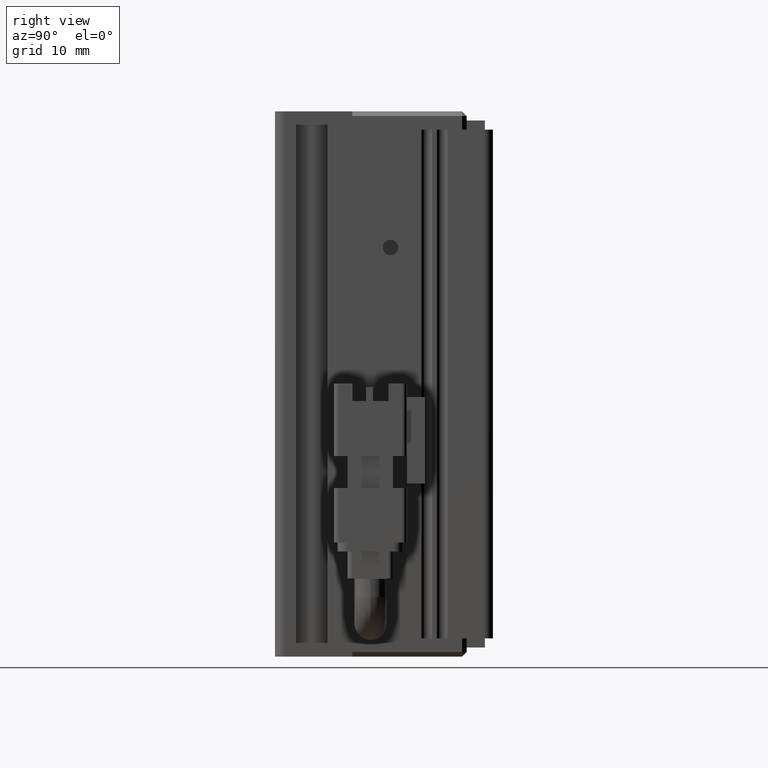
[diagram: clean part render]
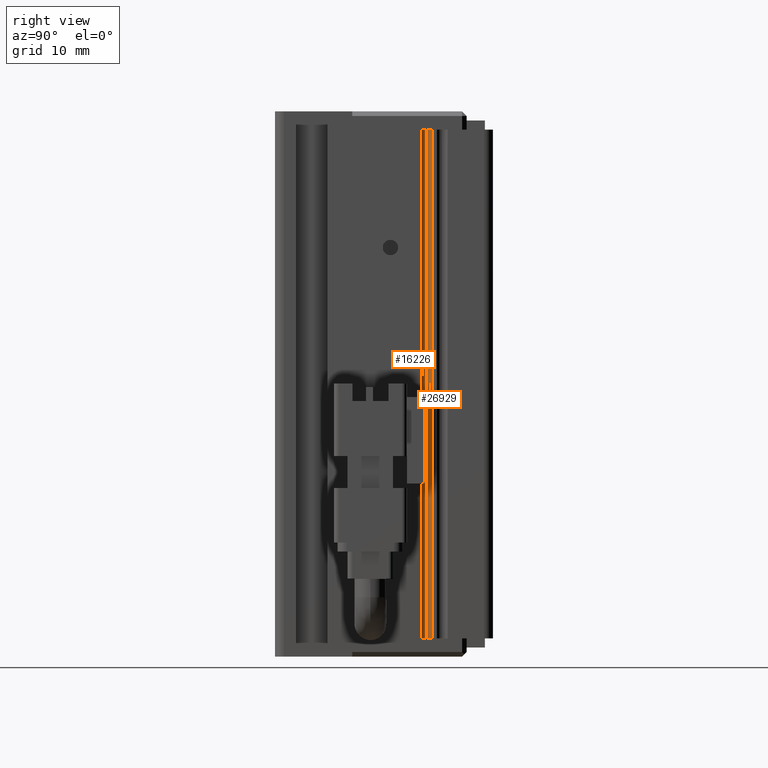
[diagram: same view with one multi-face feature highlighted, each face labeled with its STEP entity id]
A machine part, right view. The highlighted faces form ONE feature: a constant-radius fillet chain: 2 tangent blend faces with common blend radius 0.6 mm. The faces share edges in the B-rep.
Their STEP definitions:
[1] entity #26929 (Cylinder):
#212 = CIRCLE ( 'NONE', #4909, 0.6000000000000033100 ) ;
#806 = CARTESIAN_POINT ( 'NONE',  ( 40.32537974683542400, 23.78379746835443600, -87.00000000000001400 ) ) ;
#1475 = CARTESIAN_POINT ( 'NONE',  ( 40.92537974683542500, 24.38379746835444100, -143.0000000000000300 ) ) ;
#1970 = VERTEX_POINT ( 'NONE', #1475 ) ;
#2649 = DIRECTION ( 'NONE',  ( 0.0000000000000000000, 0.0000000000000000000, 1.000000000000000000 ) ) ;
#3561 = CARTESIAN_POINT ( 'NONE',  ( 40.92537974683542500, 23.78379746835443600, -87.00000000000001400 ) ) ;
#3815 = CYLINDRICAL_SURFACE ( 'NONE', #7366, 0.6000000000000033100 ) ;
#4127 = VERTEX_POINT ( 'NONE', #20525 ) ;
#4422 = DIRECTION ( 'NONE',  ( -0.0000000000000000000, -0.0000000000000000000, -1.000000000000000000 ) ) ;
#4909 = AXIS2_PLACEMENT_3D ( 'NONE', #3561, #16688, #27886 ) ;
#5116 = CARTESIAN_POINT ( 'NONE',  ( 40.92537974683542500, 23.78379746835443600, -143.0000000000000300 ) ) ;
#5387 = LINE ( 'NONE', #18865, #9861 ) ;
#7366 = AXIS2_PLACEMENT_3D ( 'NONE', #26797, #11494, #22144 ) ;
#7598 = FACE_OUTER_BOUND ( 'NONE', #14120, .T. ) ;
#8134 = AXIS2_PLACEMENT_3D ( 'NONE', #5116, #2649, #18157 ) ;
#9861 = VECTOR ( 'NONE', #21164, 1000.000000000000000 ) ;
#10653 = EDGE_CURVE ( 'NONE', #4127, #1970, #24738, .T. ) ;
#11494 = DIRECTION ( 'NONE',  ( -0.0000000000000000000, -0.0000000000000000000, -1.000000000000000000 ) ) ;
#11981 = ORIENTED_EDGE ( 'NONE', *, *, #21644, .T. ) ;
#14120 = EDGE_LOOP ( 'NONE', ( #11981, #17918, #23661, #25614 ) ) ;
#14931 = VERTEX_POINT ( 'NONE', #27929 ) ;
#16688 = DIRECTION ( 'NONE',  ( 0.0000000000000000000, 0.0000000000000000000, 1.000000000000000000 ) ) ;
#17690 = CIRCLE ( 'NONE', #8134, 0.6000000000000033100 ) ;
#17918 = ORIENTED_EDGE ( 'NONE', *, *, #28273, .T. ) ;
#18157 = DIRECTION ( 'NONE',  ( -1.000000000000000000, 0.0000000000000000000, 0.0000000000000000000 ) ) ;
#18204 = VECTOR ( 'NONE', #4422, 1000.000000000000000 ) ;
#18865 = CARTESIAN_POINT ( 'NONE',  ( 40.32537974683542400, 23.78379746835443600, -85.00000000000000000 ) ) ;
#20525 = CARTESIAN_POINT ( 'NONE',  ( 40.92537974683542500, 24.38379746835444100, -87.00000000000001400 ) ) ;
#21164 = DIRECTION ( 'NONE',  ( -0.0000000000000000000, -0.0000000000000000000, -1.000000000000000000 ) ) ;
#21604 = CARTESIAN_POINT ( 'NONE',  ( 40.92537974683542500, 24.38379746835444100, -85.00000000000000000 ) ) ;
#21644 = EDGE_CURVE ( 'NONE', #4127, #28213, #212, .T. ) ;
#22144 = DIRECTION ( 'NONE',  ( -1.000000000000000000, 0.0000000000000000000, 0.0000000000000000000 ) ) ;
#23661 = ORIENTED_EDGE ( 'NONE', *, *, #23812, .F. ) ;
#23812 = EDGE_CURVE ( 'NONE', #1970, #14931, #17690, .T. ) ;
#24738 = LINE ( 'NONE', #21604, #18204 ) ;
#25614 = ORIENTED_EDGE ( 'NONE', *, *, #10653, .F. ) ;
#26797 = CARTESIAN_POINT ( 'NONE',  ( 40.92537974683542500, 23.78379746835443600, -85.00000000000000000 ) ) ;
#26929 = ADVANCED_FACE ( 'NONE', ( #7598 ), #3815, .F. ) ;
#27886 = DIRECTION ( 'NONE',  ( -1.000000000000000000, 0.0000000000000000000, 0.0000000000000000000 ) ) ;
#27929 = CARTESIAN_POINT ( 'NONE',  ( 40.32537974683542400, 23.78379746835443600, -143.0000000000000300 ) ) ;
#28213 = VERTEX_POINT ( 'NONE', #806 ) ;
#28273 = EDGE_CURVE ( 'NONE', #28213, #14931, #5387, .T. ) ;
[2] entity #16226 (Cylinder):
#633 = CYLINDRICAL_SURFACE ( 'NONE', #5956, 0.6000000000000033100 ) ;
#806 = CARTESIAN_POINT ( 'NONE',  ( 40.32537974683542400, 23.78379746835443600, -87.00000000000001400 ) ) ;
#2729 = EDGE_CURVE ( 'NONE', #14704, #15790, #26451, .T. ) ;
#3420 = CARTESIAN_POINT ( 'NONE',  ( 40.92537974683542500, 23.18379746835443800, -87.00000000000001400 ) ) ;
#4449 = AXIS2_PLACEMENT_3D ( 'NONE', #16332, #27519, #16233 ) ;
#4991 = CIRCLE ( 'NONE', #4449, 0.6000000000000033100 ) ;
#5290 = CARTESIAN_POINT ( 'NONE',  ( 40.92537974683542500, 23.78379746835443600, -85.00000000000000000 ) ) ;
#5387 = LINE ( 'NONE', #18865, #9861 ) ;
#5956 = AXIS2_PLACEMENT_3D ( 'NONE', #5290, #9735, #27806 ) ;
#7517 = DIRECTION ( 'NONE',  ( -1.000000000000000000, 0.0000000000000000000, 0.0000000000000000000 ) ) ;
#8588 = VECTOR ( 'NONE', #12278, 1000.000000000000000 ) ;
#8733 = ORIENTED_EDGE ( 'NONE', *, *, #2729, .T. ) ;
#9735 = DIRECTION ( 'NONE',  ( -0.0000000000000000000, -0.0000000000000000000, -1.000000000000000000 ) ) ;
#9861 = VECTOR ( 'NONE', #21164, 1000.000000000000000 ) ;
#10086 = CARTESIAN_POINT ( 'NONE',  ( 40.92537974683542500, 23.18379746835444200, -85.00000000000000000 ) ) ;
#10361 = EDGE_CURVE ( 'NONE', #14931, #15790, #13459, .T. ) ;
#11200 = EDGE_LOOP ( 'NONE', ( #16079, #16418, #8733, #18672 ) ) ;
#11910 = CARTESIAN_POINT ( 'NONE',  ( 40.92537974683542500, 23.78379746835443600, -143.0000000000000300 ) ) ;
#12278 = DIRECTION ( 'NONE',  ( -0.0000000000000000000, -0.0000000000000000000, -1.000000000000000000 ) ) ;
#13459 = CIRCLE ( 'NONE', #27427, 0.6000000000000033100 ) ;
#14704 = VERTEX_POINT ( 'NONE', #3420 ) ;
#14931 = VERTEX_POINT ( 'NONE', #27929 ) ;
#15790 = VERTEX_POINT ( 'NONE', #16164 ) ;
#16079 = ORIENTED_EDGE ( 'NONE', *, *, #28273, .F. ) ;
#16164 = CARTESIAN_POINT ( 'NONE',  ( 40.92537974683542500, 23.18379746835443800, -143.0000000000000300 ) ) ;
#16226 = ADVANCED_FACE ( 'NONE', ( #19565 ), #633, .F. ) ;
#16233 = DIRECTION ( 'NONE',  ( -1.000000000000000000, 0.0000000000000000000, 0.0000000000000000000 ) ) ;
#16332 = CARTESIAN_POINT ( 'NONE',  ( 40.92537974683542500, 23.78379746835443600, -87.00000000000001400 ) ) ;
#16418 = ORIENTED_EDGE ( 'NONE', *, *, #24032, .T. ) ;
#18536 = DIRECTION ( 'NONE',  ( 0.0000000000000000000, 0.0000000000000000000, 1.000000000000000000 ) ) ;
#18672 = ORIENTED_EDGE ( 'NONE', *, *, #10361, .F. ) ;
#18865 = CARTESIAN_POINT ( 'NONE',  ( 40.32537974683542400, 23.78379746835443600, -85.00000000000000000 ) ) ;
#19565 = FACE_OUTER_BOUND ( 'NONE', #11200, .T. ) ;
#21164 = DIRECTION ( 'NONE',  ( -0.0000000000000000000, -0.0000000000000000000, -1.000000000000000000 ) ) ;
#24032 = EDGE_CURVE ( 'NONE', #28213, #14704, #4991, .T. ) ;
#26451 = LINE ( 'NONE', #10086, #8588 ) ;
#27427 = AXIS2_PLACEMENT_3D ( 'NONE', #11910, #18536, #7517 ) ;
#27519 = DIRECTION ( 'NONE',  ( 0.0000000000000000000, 0.0000000000000000000, 1.000000000000000000 ) ) ;
#27806 = DIRECTION ( 'NONE',  ( -1.000000000000000000, 0.0000000000000000000, 0.0000000000000000000 ) ) ;
#27929 = CARTESIAN_POINT ( 'NONE',  ( 40.32537974683542400, 23.78379746835443600, -143.0000000000000300 ) ) ;
#28213 = VERTEX_POINT ( 'NONE', #806 ) ;
#28273 = EDGE_CURVE ( 'NONE', #28213, #14931, #5387, .T. ) ;